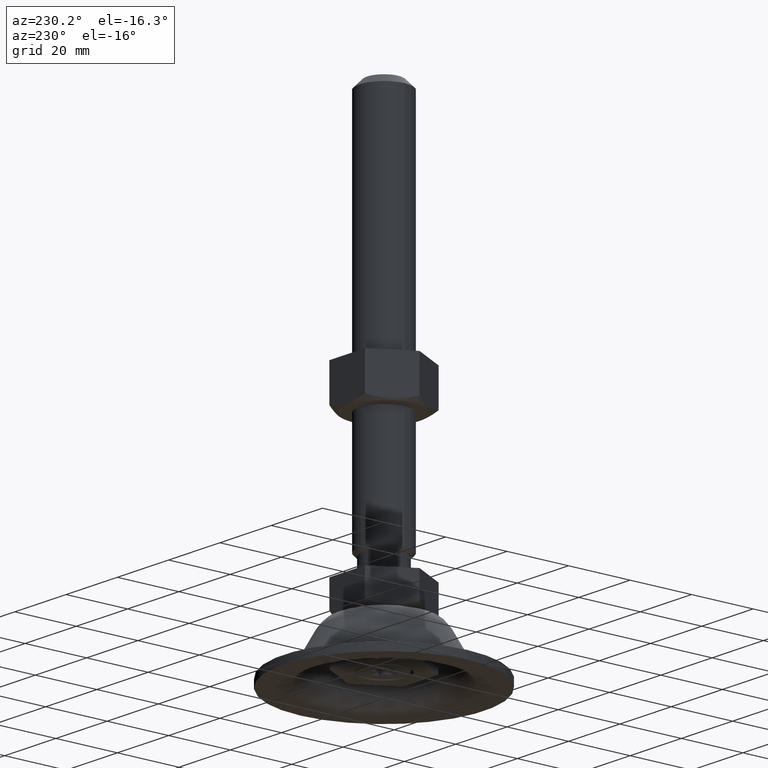
[diagram: clean part render]
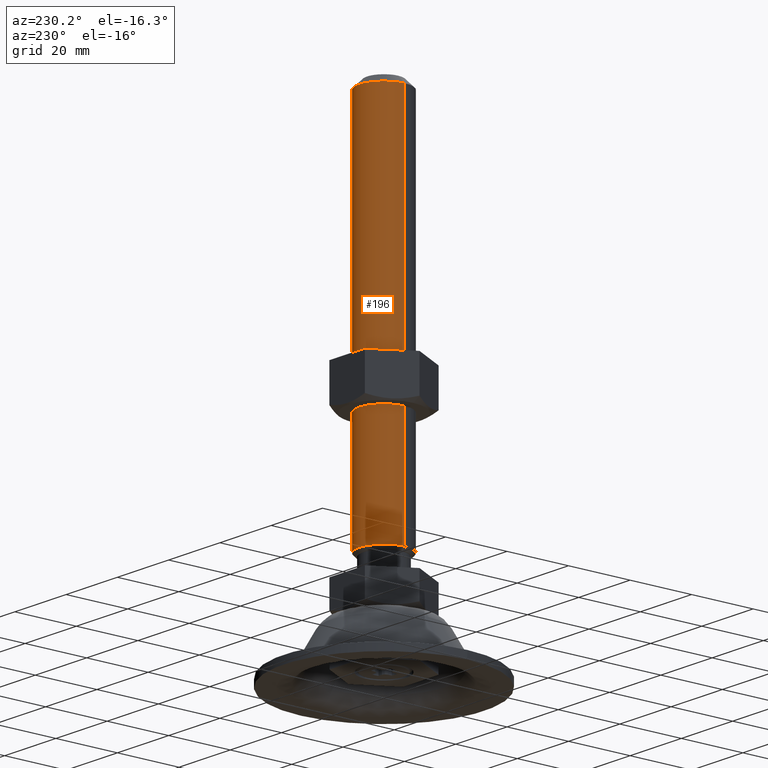
[diagram: same view with one face highlighted and labeled with its STEP entity id]
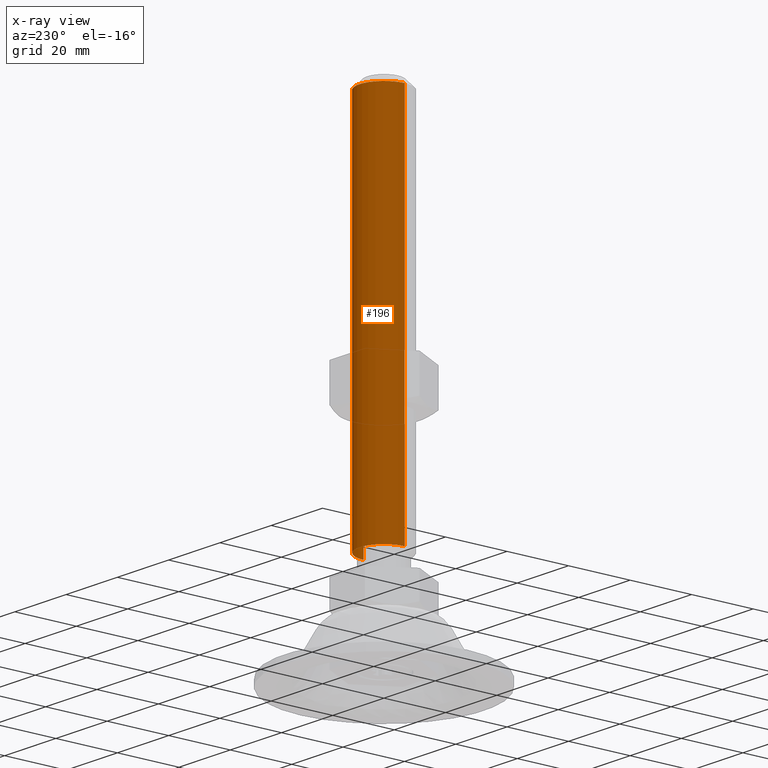
[diagram: x-ray of the same camera — body ghosted, the highlighted face saturated]
A machine part, auxiliary view. The second image highlights one B-rep face of the part: STEP entity #196.
The next image is the same camera in x-ray: the body ghosted, the highlighted face saturated — about 0% of this face is hidden behind the body in this view.
In plain terms, the highlighted cylindrical surface (edge-blend (fillet) strip) has radius 8 mm, axis along (0, 0, 1).
Its self-contained STEP definition (entity closure, byte-faithful):
#196=ADVANCED_FACE('',(#716),#715,.T.);
#715=CYLINDRICAL_SURFACE('',#1419,8.00000000017E+00);
#716=FACE_OUTER_BOUND('',#1420,.T.);
#1416=CARTESIAN_POINT('',(-3.19460013998E-11,0.00000000000E+00,0.00000000000E+00));
#1417=DIRECTION('',(0.00000000000E+00,-0.00000000000E+00,1.00000000000E+00));
#1418=DIRECTION('',(-1.00000000000E+00,1.22464679915E-16,0.00000000000E+00));
#1419=AXIS2_PLACEMENT_3D('',#1416,#1417,#1418);
#1420=EDGE_LOOP('',(#2109,#2110,#2111,#2112));
#2109=ORIENTED_EDGE('',*,*,#2421,.F.);
#2110=ORIENTED_EDGE('',*,*,#2418,.T.);
#2111=ORIENTED_EDGE('',*,*,#2422,.T.);
#2112=ORIENTED_EDGE('',*,*,#2420,.F.);
#2418=EDGE_CURVE('',#3339,#3332,#3340,.T.);
#2420=EDGE_CURVE('',#3346,#3331,#3353,.T.);
#2421=EDGE_CURVE('',#3339,#3346,#3359,.T.);
#2422=EDGE_CURVE('',#3332,#3331,#3365,.T.);
#3331=VERTEX_POINT('',#4471);
#3332=VERTEX_POINT('',#4472);
#3339=VERTEX_POINT('',#4477);
#3340=(BOUNDED_CURVE() B_SPLINE_CURVE(1,(#4478,#4479),.UNSPECIFIED.,.F.,.F.) B_SPLINE_CURVE_WITH_KNOTS((2,2),(7.11743773888E-02,9.28825622939E-01),.UNSPECIFIED.) CURVE() GEOMETRIC_REPRESENTATION_ITEM() RATIONAL_B_SPLINE_CURVE((1.00000000000E+00,1.00000000000E+00)) REPRESENTATION_ITEM('') );
#3346=VERTEX_POINT('',#4480);
#3353=(BOUNDED_CURVE() B_SPLINE_CURVE(1,(#4485,#4486),.UNSPECIFIED.,.F.,.F.) B_SPLINE_CURVE_WITH_KNOTS((2,2),(7.11743772922E-02,9.28825622708E-01),.UNSPECIFIED.) CURVE() GEOMETRIC_REPRESENTATION_ITEM() RATIONAL_B_SPLINE_CURVE((7.50000000000E-01,7.50000000000E-01)) REPRESENTATION_ITEM('') );
#3359=CIRCLE('',#4490,8.00000000007E+00);
#3365=CIRCLE('',#4494,8.00000000017E+00);
#4471=CARTESIAN_POINT('',(8.00000000014E+00,0.00000000000E+00,1.27499999866E+02));
#4472=CARTESIAN_POINT('',(-8.00000000020E+00,1.48029736617E-15,1.27499999866E+02));
#4477=CARTESIAN_POINT('',(-8.00000000010E+00,0.00000000000E+00,6.99999999998E+00));
#4478=CARTESIAN_POINT('',(-8.00000000020E+00,9.79717439338E-16,7.00000001356E+00));
#4479=CARTESIAN_POINT('',(-8.00000000020E+00,9.79717439338E-16,1.27499999898E+02));
#4480=CARTESIAN_POINT('',(8.00000000004E+00,8.88178419700E-16,6.99999999998E+00));
#4485=CARTESIAN_POINT('',(8.00000000014E+00,-8.88178419700E-16,6.99999999998E+00));
#4486=CARTESIAN_POINT('',(8.00000000014E+00,-8.88178419700E-16,1.27499999866E+02));
#4487=CARTESIAN_POINT('',(-3.19460013998E-11,0.00000000000E+00,6.99999999998E+00));
#4488=DIRECTION('',(-0.00000000000E+00,0.00000000000E+00,-1.00000000000E+00));
#4489=DIRECTION('',(-1.00000000000E+00,-1.22460635382E-16,0.00000000000E+00));
#4490=AXIS2_PLACEMENT_3D('',#4487,#4488,#4489);
#4491=CARTESIAN_POINT('',(-3.19460013998E-11,0.00000000000E+00,1.27499999866E+02));
#4492=DIRECTION('',(0.00000000000E+00,0.00000000000E+00,-1.00000000000E+00));
#4493=DIRECTION('',(1.00000000000E+00,-1.22460635382E-16,0.00000000000E+00));
#4494=AXIS2_PLACEMENT_3D('',#4491,#4492,#4493);